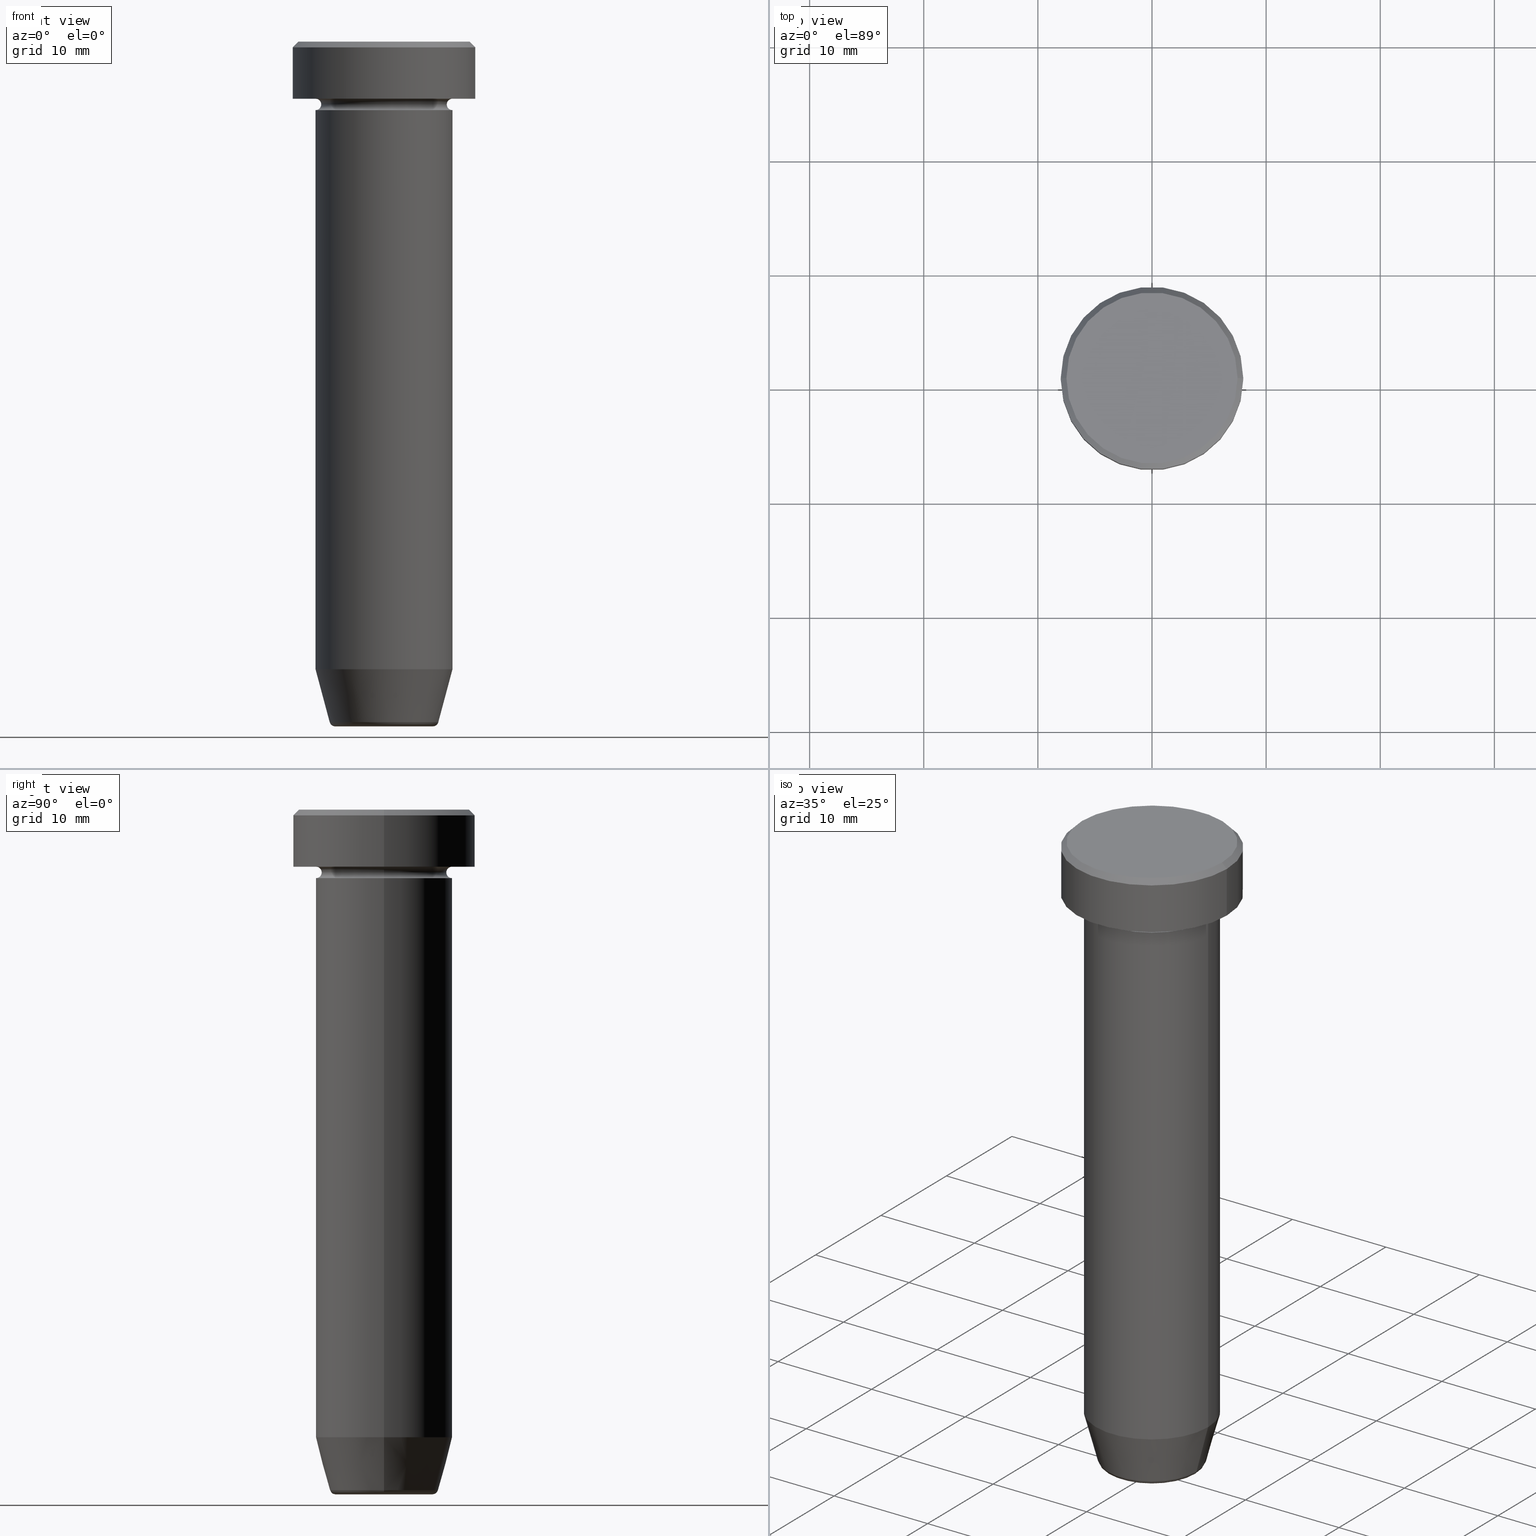
[diagram: canonical four-view strip — front | top / right | iso, engineering-drawing reading convention]
A machine part, canonical four-view strip (front | top / right | iso — engineering-drawing reading convention). The complete STEP part file that produces these views, byte-faithful:
ISO-10303-21;
HEADER;
FILE_DESCRIPTION (( 'STEP AP203' ),
    '1' );
FILE_NAME ('a646.STEP',
    '2024-01-02T23:16:25',
    ( '' ),
    ( '' ),
    'SwSTEP 2.0',
    'SolidWorks 2019',
    '' );
FILE_SCHEMA (( 'CONFIG_CONTROL_DESIGN' ));
ENDSEC;

DATA;
#1 = PRODUCT ( 'a646', 'a646', '', ( #43 ) ) ;
#2 = LOCAL_TIME ( 0, 16, 25.00000000000000000, #158 ) ;
#3 = DIRECTION ( 'NONE',  ( -0.000000000000000000, -0.000000000000000000, 1.000000000000000000 ) ) ;
#4 = CARTESIAN_POINT ( 'NONE',  ( 0.000000000000000000, 0.000000000000000000, -5.000000000000000000 ) ) ;
#5 = VECTOR ( 'NONE', #447, 1000.000000000000114 ) ;
#6 = CARTESIAN_POINT ( 'NONE',  ( 0.000000000000000000, 0.000000000000000000, -5.500000000000000000 ) ) ;
#7 = CARTESIAN_POINT ( 'NONE',  ( -6.000000000000000000, 7.347880794884119736E-16, 0.000000000000000000 ) ) ;
#8 = DIRECTION ( 'NONE',  ( -1.000000000000000000, -1.224646799147351482E-16, 0.000000000000000000 ) ) ;
#9 = ADVANCED_FACE ( 'NONE', ( #477 ), #558, .F. ) ;
#10 = ORIENTED_EDGE ( 'NONE', *, *, #518, .F. ) ;
#11 = PRODUCT_DEFINITION_FORMATION_WITH_SPECIFIED_SOURCE ( 'LIBOVOLN�', '', #1, .NOT_KNOWN. ) ;
#12 = DIRECTION ( 'NONE',  ( -1.000000000000000000, 0.000000000000000000, 0.000000000000000000 ) ) ;
#13 = AXIS2_PLACEMENT_3D ( 'NONE', #241, #244, #328 ) ;
#14 = ORIENTED_EDGE ( 'NONE', *, *, #84, .F. ) ;
#15 = ADVANCED_FACE ( 'NONE', ( #380 ), #82, .T. ) ;
#16 = CARTESIAN_POINT ( 'NONE',  ( 0.000000000000000000, 0.000000000000000000, 0.000000000000000000 ) ) ;
#17 = PERSON ( 'NEUR�EN�', 'NEUR�EN�', 'NEUR�EN�', ('NEUR�EN�'), ('NEUR�EN�'), ('NEUR�EN�') ) ;
#18 = CARTESIAN_POINT ( 'NONE',  ( 6.000000000000000000, 0.000000000000000000, -54.99999999999999289 ) ) ;
#19 = CIRCLE ( 'NONE', #415, 7.499999999999992895 ) ;
#20 = DIRECTION ( 'NONE',  ( -0.000000000000000000, -0.000000000000000000, 1.000000000000000000 ) ) ;
#21 = DIRECTION ( 'NONE',  ( 1.000000000000000000, 0.000000000000000000, 0.000000000000000000 ) ) ;
#22 = VERTEX_POINT ( 'NONE', #467 ) ;
#23 = LINE ( 'NONE', #121, #118 ) ;
#24 = DIRECTION ( 'NONE',  ( 1.000000000000000000, 0.000000000000000000, 0.000000000000000000 ) ) ;
#25 = CIRCLE ( 'NONE', #555, 4.759553456999439547 ) ;
#26 = ORIENTED_EDGE ( 'NONE', *, *, #580, .F. ) ;
#27 = FACE_OUTER_BOUND ( 'NONE', #583, .T. ) ;
#28 = CIRCLE ( 'NONE', #396, 5.500000000000000000 ) ;
#29 = DIRECTION ( 'NONE',  ( 0.000000000000000000, 0.000000000000000000, -1.000000000000000000 ) ) ;
#30 = VERTEX_POINT ( 'NONE', #48 ) ;
#31 = FACE_OUTER_BOUND ( 'NONE', #588, .T. ) ;
#32 = CIRCLE ( 'NONE', #148, 7.499999999999992895 ) ;
#33 = DESIGN_CONTEXT ( 'detailed design', #38, 'design' ) ;
#34 = ORIENTED_EDGE ( 'NONE', *, *, #40, .F. ) ;
#35 = CIRCLE ( 'NONE', #110, 0.5000000000000004441 ) ;
#36 = ORIENTED_EDGE ( 'NONE', *, *, #518, .T. ) ;
#37 = APPROVAL_DATE_TIME ( #217, #331 ) ;
#38 = APPLICATION_CONTEXT ( 'configuration controlled 3d designs of mechanical parts and assemblies' ) ;
#39 = ORIENTED_EDGE ( 'NONE', *, *, #511, .T. ) ;
#40 = EDGE_CURVE ( 'NONE', #247, #553, #297, .T. ) ;
#41 = AXIS2_PLACEMENT_3D ( 'NONE', #96, #99, #155 ) ;
#42 = EDGE_LOOP ( 'NONE', ( #363, #357, #346, #126 ) ) ;
#43 = MECHANICAL_CONTEXT ( 'NONE', #498, 'mechanical' ) ;
#44 = AXIS2_PLACEMENT_3D ( 'NONE', #60, #242, #388 ) ;
#45 = ORIENTED_EDGE ( 'NONE', *, *, #499, .F. ) ;
#46 = DIRECTION ( 'NONE',  ( -0.000000000000000000, -0.000000000000000000, 1.000000000000000000 ) ) ;
#47 = PLANE ( 'NONE',  #321 ) ;
#48 = CARTESIAN_POINT ( 'NONE',  ( -6.000000000000000000, 7.347880794884119736E-16, -15.00000000000000000 ) ) ;
#49 = CC_DESIGN_PERSON_AND_ORGANIZATION_ASSIGNMENT ( #141, #322, ( #1 ) ) ;
#50 = PLANE ( 'NONE',  #441 ) ;
#51 = AXIS2_PLACEMENT_3D ( 'NONE', #201, #255, #298 ) ;
#52 = AXIS2_PLACEMENT_3D ( 'NONE', #6, #154, #55 ) ;
#53 = EDGE_LOOP ( 'NONE', ( #223, #320 ) ) ;
#54 = DIRECTION ( 'NONE',  ( -0.000000000000000000, -0.000000000000000000, 1.000000000000000000 ) ) ;
#55 = DIRECTION ( 'NONE',  ( -1.000000000000000000, 0.000000000000000000, 0.000000000000000000 ) ) ;
#56 =( GEOMETRIC_REPRESENTATION_CONTEXT ( 3 ) GLOBAL_UNCERTAINTY_ASSIGNED_CONTEXT ( ( #213 ) ) GLOBAL_UNIT_ASSIGNED_CONTEXT ( ( #83, #136, #451 ) ) REPRESENTATION_CONTEXT ( 'NONE', 'WORKASPACE' ) );
#57 = EDGE_CURVE ( 'NONE', #598, #405, #133, .T. ) ;
#58 = FACE_OUTER_BOUND ( 'NONE', #138, .T. ) ;
#59 = AXIS2_PLACEMENT_3D ( 'NONE', #163, #586, #77 ) ;
#60 = CARTESIAN_POINT ( 'NONE',  ( 6.000000000000000000, 0.000000000000000000, -5.500000000000000000 ) ) ;
#61 = EDGE_CURVE ( 'NONE', #367, #76, #165, .T. ) ;
#62 = CARTESIAN_POINT ( 'NONE',  ( 0.000000000000000000, 6.000000000000000000, -15.00000000000000000 ) ) ;
#63 = FACE_OUTER_BOUND ( 'NONE', #569, .T. ) ;
#64 = ORIENTED_EDGE ( 'NONE', *, *, #483, .T. ) ;
#65 = COORDINATED_UNIVERSAL_TIME_OFFSET ( 1, 0, .AHEAD. ) ;
#66 = DIRECTION ( 'NONE',  ( 1.000000000000000000, 0.000000000000000000, 0.000000000000000000 ) ) ;
#67 = DIRECTION ( 'NONE',  ( -0.000000000000000000, -0.000000000000000000, 1.000000000000000000 ) ) ;
#68 = LOCAL_TIME ( 0, 16, 25.00000000000000000, #65 ) ;
#69 = DIRECTION ( 'NONE',  ( -0.000000000000000000, -0.000000000000000000, 1.000000000000000000 ) ) ;
#70 = AXIS2_PLACEMENT_3D ( 'NONE', #487, #206, #540 ) ;
#71 = CARTESIAN_POINT ( 'NONE',  ( 0.000000000000000000, 0.000000000000000000, 0.000000000000000000 ) ) ;
#72 = VERTEX_POINT ( 'NONE', #417 ) ;
#73 = AXIS2_PLACEMENT_3D ( 'NONE', #439, #535, #443 ) ;
#74 = DATE_TIME_ROLE ( 'classification_date' ) ;
#75 = CARTESIAN_POINT ( 'NONE',  ( 8.000000000000000000, 0.000000000000000000, -5.000000000000000000 ) ) ;
#76 = VERTEX_POINT ( 'NONE', #564 ) ;
#77 = DIRECTION ( 'NONE',  ( 1.000000000000000000, 0.000000000000000000, 0.000000000000000000 ) ) ;
#78 = ORIENTED_EDGE ( 'NONE', *, *, #348, .T. ) ;
#79 = AXIS2_PLACEMENT_3D ( 'NONE', #334, #101, #325 ) ;
#80 = CARTESIAN_POINT ( 'NONE',  ( 4.276590543854903004, 0.000000000000000000, -59.50000000000000000 ) ) ;
#81 = ORIENTED_EDGE ( 'NONE', *, *, #338, .T. ) ;
#82 = CONICAL_SURFACE ( 'NONE', #173, 7.499999999999992895, 0.7853981633974482790 ) ;
#83 =( LENGTH_UNIT ( ) NAMED_UNIT ( * ) SI_UNIT ( .MILLI., .METRE. ) );
#84 = EDGE_CURVE ( 'NONE', #508, #405, #142, .T. ) ;
#85 = ORIENTED_EDGE ( 'NONE', *, *, #362, .F. ) ;
#86 = CARTESIAN_POINT ( 'NONE',  ( -4.660254037844383745, 5.707165190659652868E-16, -60.00000000000000000 ) ) ;
#87 = APPROVAL_PERSON_ORGANIZATION ( #107, #222, #212 ) ;
#88 = ORIENTED_EDGE ( 'NONE', *, *, #230, .F. ) ;
#89 = AXIS2_PLACEMENT_3D ( 'NONE', #16, #515, #146 ) ;
#90 = CARTESIAN_POINT ( 'NONE',  ( 5.500000000000000000, 0.000000000000000000, -5.500000000000000000 ) ) ;
#91 = ORIENTED_EDGE ( 'NONE', *, *, #57, .F. ) ;
#92 = EDGE_CURVE ( 'NONE', #553, #367, #35, .T. ) ;
#93 = PLANE ( 'NONE',  #504 ) ;
#94 = CARTESIAN_POINT ( 'NONE',  ( 0.000000000000000000, 0.000000000000000000, -60.00000000000000000 ) ) ;
#95 = VERTEX_POINT ( 'NONE', #323 ) ;
#96 = CARTESIAN_POINT ( 'NONE',  ( 0.000000000000000000, 0.000000000000000000, 0.000000000000000000 ) ) ;
#97 = CIRCLE ( 'NONE', #403, 4.276590543854903004 ) ;
#98 = FACE_OUTER_BOUND ( 'NONE', #542, .T. ) ;
#99 = DIRECTION ( 'NONE',  ( -0.000000000000000000, -0.000000000000000000, 1.000000000000000000 ) ) ;
#100 = DIRECTION ( 'NONE',  ( -0.000000000000000000, -0.000000000000000000, 1.000000000000000000 ) ) ;
#101 = DIRECTION ( 'NONE',  ( -0.000000000000000000, -1.000000000000000000, -0.000000000000000000 ) ) ;
#102 = PRODUCT_RELATED_PRODUCT_CATEGORY ( 'detail', '', ( #1 ) ) ;
#103 = VERTEX_POINT ( 'NONE', #429 ) ;
#104 = DIRECTION ( 'NONE',  ( 1.000000000000000000, 0.000000000000000000, 0.000000000000000000 ) ) ;
#105 = CIRCLE ( 'NONE', #70, 8.000000000000000000 ) ;
#106 = DIRECTION ( 'NONE',  ( 0.7071067811865474617, 8.659560562354932858E-17, -0.7071067811865474617 ) ) ;
#107 = PERSON_AND_ORGANIZATION ( #17, #562 ) ;
#108 = DIRECTION ( 'NONE',  ( 1.000000000000000000, 0.000000000000000000, 0.000000000000000000 ) ) ;
#109 = FACE_OUTER_BOUND ( 'NONE', #42, .T. ) ;
#110 = AXIS2_PLACEMENT_3D ( 'NONE', #556, #184, #8 ) ;
#111 = ORIENTED_EDGE ( 'NONE', *, *, #366, .T. ) ;
#112 = DIRECTION ( 'NONE',  ( -1.000000000000000000, 0.000000000000000000, 0.000000000000000000 ) ) ;
#113 = CARTESIAN_POINT ( 'NONE',  ( 0.000000000000000000, 0.000000000000000000, 0.000000000000000000 ) ) ;
#114 = ORIENTED_EDGE ( 'NONE', *, *, #149, .T. ) ;
#115 = LOCAL_TIME ( 0, 16, 25.00000000000000000, #454 ) ;
#116 = CC_DESIGN_PERSON_AND_ORGANIZATION_ASSIGNMENT ( #248, #205, ( #11 ) ) ;
#117 = CARTESIAN_POINT ( 'NONE',  ( 0.000000000000000000, 0.000000000000000000, -15.00000000000000000 ) ) ;
#118 = VECTOR ( 'NONE', #202, 1000.000000000000000 ) ;
#119 = VERTEX_POINT ( 'NONE', #333 ) ;
#120 = DATE_AND_TIME ( #444, #68 ) ;
#121 = CARTESIAN_POINT ( 'NONE',  ( 8.000000000000000000, 0.000000000000000000, 0.000000000000000000 ) ) ;
#122 = ADVANCED_FACE ( 'NONE', ( #145 ), #93, .F. ) ;
#123 = ORIENTED_EDGE ( 'NONE', *, *, #545, .T. ) ;
#124 = FACE_OUTER_BOUND ( 'NONE', #266, .T. ) ;
#125 = ADVANCED_FACE ( 'NONE', ( #464 ), #267, .T. ) ;
#126 = ORIENTED_EDGE ( 'NONE', *, *, #197, .F. ) ;
#127 = CARTESIAN_POINT ( 'NONE',  ( -4.276590543854903004, 5.237312920795746049E-16, -59.50000000000000000 ) ) ;
#128 = EDGE_LOOP ( 'NONE', ( #408, #305, #45, #550 ) ) ;
#129 = AXIS2_PLACEMENT_3D ( 'NONE', #565, #563, #104 ) ;
#130 = ADVANCED_FACE ( 'NONE', ( #98 ), #284, .T. ) ;
#131 = DIRECTION ( 'NONE',  ( -1.000000000000000000, 1.224646799147353454E-16, 0.000000000000000000 ) ) ;
#132 = ORIENTED_EDGE ( 'NONE', *, *, #348, .F. ) ;
#133 = CIRCLE ( 'NONE', #324, 8.000000000000000000 ) ;
#134 = APPROVAL_STATUS ( 'not_yet_approved' ) ;
#135 = EDGE_LOOP ( 'NONE', ( #536, #385 ) ) ;
#136 =( NAMED_UNIT ( * ) PLANE_ANGLE_UNIT ( ) SI_UNIT ( $, .RADIAN. ) );
#137 = CC_DESIGN_APPROVAL ( #222, ( #11 ) ) ;
#138 = EDGE_LOOP ( 'NONE', ( #157, #544 ) ) ;
#139 = AXIS2_PLACEMENT_3D ( 'NONE', #345, #67, #533 ) ;
#140 = AXIS2_PLACEMENT_3D ( 'NONE', #543, #300, #249 ) ;
#141 = PERSON_AND_ORGANIZATION ( #17, #562 ) ;
#142 = LINE ( 'NONE', #375, #423 ) ;
#143 = EDGE_CURVE ( 'NONE', #553, #247, #28, .T. ) ;
#144 = FACE_OUTER_BOUND ( 'NONE', #559, .T. ) ;
#145 = FACE_OUTER_BOUND ( 'NONE', #53, .T. ) ;
#146 = DIRECTION ( 'NONE',  ( 1.000000000000000000, 0.000000000000000000, 0.000000000000000000 ) ) ;
#147 = DIRECTION ( 'NONE',  ( 1.000000000000000000, 0.000000000000000000, 0.000000000000000000 ) ) ;
#148 = AXIS2_PLACEMENT_3D ( 'NONE', #438, #258, #167 ) ;
#149 = EDGE_CURVE ( 'NONE', #30, #218, #488, .T. ) ;
#150 = DIRECTION ( 'NONE',  ( 1.000000000000000000, 0.000000000000000000, 0.000000000000000000 ) ) ;
#151 = DIRECTION ( 'NONE',  ( -1.000000000000000000, 0.000000000000000000, 0.000000000000000000 ) ) ;
#152 = CARTESIAN_POINT ( 'NONE',  ( 0.000000000000000000, 0.000000000000000000, 0.000000000000000000 ) ) ;
#153 = CIRCLE ( 'NONE', #245, 6.000000000000000000 ) ;
#154 = DIRECTION ( 'NONE',  ( 0.000000000000000000, 0.000000000000000000, -1.000000000000000000 ) ) ;
#155 = DIRECTION ( 'NONE',  ( 1.000000000000000000, 0.000000000000000000, 0.000000000000000000 ) ) ;
#156 = DIRECTION ( 'NONE',  ( -0.000000000000000000, -0.000000000000000000, 1.000000000000000000 ) ) ;
#157 = ORIENTED_EDGE ( 'NONE', *, *, #366, .F. ) ;
#158 = COORDINATED_UNIVERSAL_TIME_OFFSET ( 1, 0, .AHEAD. ) ;
#159 = CARTESIAN_POINT ( 'NONE',  ( 0.000000000000000000, 0.000000000000000000, -54.99999999999999289 ) ) ;
#160 = CIRCLE ( 'NONE', #343, 0.5000000000000004441 ) ;
#161 = CYLINDRICAL_SURFACE ( 'NONE', #139, 8.000000000000000000 ) ;
#162 = VECTOR ( 'NONE', #414, 1000.000000000000114 ) ;
#163 = CARTESIAN_POINT ( 'NONE',  ( 0.000000000000000000, 0.000000000000000000, -59.50000000000000000 ) ) ;
#164 = CARTESIAN_POINT ( 'NONE',  ( 0.000000000000000000, 0.000000000000000000, -15.00000000000000000 ) ) ;
#165 = CIRCLE ( 'NONE', #207, 6.000000000000000000 ) ;
#166 = EDGE_LOOP ( 'NONE', ( #172, #210 ) ) ;
#167 = DIRECTION ( 'NONE',  ( 1.000000000000000000, 0.000000000000000000, 0.000000000000000000 ) ) ;
#168 = DIRECTION ( 'NONE',  ( -0.000000000000000000, -0.000000000000000000, 1.000000000000000000 ) ) ;
#169 = CIRCLE ( 'NONE', #411, 8.000000000000000000 ) ;
#170 = APPROVAL_ROLE ( '' ) ;
#171 = CARTESIAN_POINT ( 'NONE',  ( 0.000000000000000000, 0.000000000000000000, -60.00000000000000000 ) ) ;
#172 = ORIENTED_EDGE ( 'NONE', *, *, #545, .F. ) ;
#173 = AXIS2_PLACEMENT_3D ( 'NONE', #188, #336, #151 ) ;
#174 = DIRECTION ( 'NONE',  ( 0.000000000000000000, -1.000000000000000000, 0.000000000000000000 ) ) ;
#175 = ORIENTED_EDGE ( 'NONE', *, *, #469, .T. ) ;
#176 = EDGE_CURVE ( 'NONE', #264, #72, #512, .T. ) ;
#177 = ORIENTED_EDGE ( 'NONE', *, *, #316, .T. ) ;
#178 = CIRCLE ( 'NONE', #520, 6.000000000000000000 ) ;
#179 = ORIENTED_EDGE ( 'NONE', *, *, #463, .F. ) ;
#180 = CIRCLE ( 'NONE', #73, 6.000000000000000000 ) ;
#181 = DIRECTION ( 'NONE',  ( 1.000000000000000000, 0.000000000000000000, 0.000000000000000000 ) ) ;
#182 = VERTEX_POINT ( 'NONE', #198 ) ;
#183 = LINE ( 'NONE', #86, #573 ) ;
#184 = DIRECTION ( 'NONE',  ( -1.224646799147353207E-16, 1.000000000000000000, 0.000000000000000000 ) ) ;
#185 = AXIS2_PLACEMENT_3D ( 'NONE', #236, #337, #428 ) ;
#186 = CONICAL_SURFACE ( 'NONE', #382, 4.660254037844383745, 0.2617993877991497409 ) ;
#187 = LINE ( 'NONE', #7, #509 ) ;
#188 = CARTESIAN_POINT ( 'NONE',  ( 0.000000000000000000, 0.000000000000000000, 0.000000000000000000 ) ) ;
#189 = CARTESIAN_POINT ( 'NONE',  ( 6.000000000000000000, 7.347880794884119736E-16, -4.999999999999999112 ) ) ;
#190 = EDGE_CURVE ( 'NONE', #330, #218, #445, .T. ) ;
#191 = DIRECTION ( 'NONE',  ( -1.000000000000000000, 0.000000000000000000, 0.000000000000000000 ) ) ;
#192 = DIRECTION ( 'NONE',  ( -0.000000000000000000, -0.000000000000000000, 1.000000000000000000 ) ) ;
#193 = VECTOR ( 'NONE', #592, 1000.000000000000000 ) ;
#194 = DIRECTION ( 'NONE',  ( 0.000000000000000000, 0.000000000000000000, -1.000000000000000000 ) ) ;
#195 = EDGE_LOOP ( 'NONE', ( #78, #549, #259, #413 ) ) ;
#196 = DIRECTION ( 'NONE',  ( -1.000000000000000000, 0.000000000000000000, -0.000000000000000000 ) ) ;
#197 = EDGE_CURVE ( 'NONE', #218, #330, #180, .T. ) ;
#198 = CARTESIAN_POINT ( 'NONE',  ( 6.000000000000000000, 0.000000000000000000, -15.00000000000000000 ) ) ;
#199 = APPROVAL_DATE_TIME ( #585, #222 ) ;
#200 = FACE_OUTER_BOUND ( 'NONE', #482, .T. ) ;
#201 = CARTESIAN_POINT ( 'NONE',  ( 0.000000000000000000, 0.000000000000000000, -6.000000000000000000 ) ) ;
#202 = DIRECTION ( 'NONE',  ( -0.000000000000000000, -0.000000000000000000, 1.000000000000000000 ) ) ;
#203 = CIRCLE ( 'NONE', #263, 8.000000000000000000 ) ;
#204 = CARTESIAN_POINT ( 'NONE',  ( -6.000000000000000000, 7.347880794884119736E-16, -6.000000000000000000 ) ) ;
#205 = PERSON_AND_ORGANIZATION_ROLE ( 'creator' ) ;
#206 = DIRECTION ( 'NONE',  ( 0.000000000000000000, 0.000000000000000000, -1.000000000000000000 ) ) ;
#207 = AXIS2_PLACEMENT_3D ( 'NONE', #229, #192, #371 ) ;
#208 = ORIENTED_EDGE ( 'NONE', *, *, #234, .F. ) ;
#209 = DIRECTION ( 'NONE',  ( 0.000000000000000000, 0.000000000000000000, -1.000000000000000000 ) ) ;
#210 = ORIENTED_EDGE ( 'NONE', *, *, #335, .F. ) ;
#211 = APPROVAL ( #347, 'NEUR�EN�' ) ;
#212 = APPROVAL_ROLE ( '' ) ;
#213 = UNCERTAINTY_MEASURE_WITH_UNIT (LENGTH_MEASURE( 1.000000000000000082E-05 ), #83, 'distance_accuracy_value', 'NONE');
#214 = CARTESIAN_POINT ( 'NONE',  ( 0.000000000000000000, 0.000000000000000000, 0.000000000000000000 ) ) ;
#215 = AXIS2_PLACEMENT_3D ( 'NONE', #356, #436, #66 ) ;
#216 = ORIENTED_EDGE ( 'NONE', *, *, #228, .T. ) ;
#217 = DATE_AND_TIME ( #589, #115 ) ;
#218 = VERTEX_POINT ( 'NONE', #204 ) ;
#219 = DIRECTION ( 'NONE',  ( -0.2588190451025210170, 3.169619151431768639E-17, 0.9659258262890680902 ) ) ;
#220 = ORIENTED_EDGE ( 'NONE', *, *, #362, .T. ) ;
#221 = PERSON_AND_ORGANIZATION ( #17, #562 ) ;
#222 = APPROVAL ( #531, 'NEUR�EN�' ) ;
#223 = ORIENTED_EDGE ( 'NONE', *, *, #404, .T. ) ;
#224 = AXIS2_PLACEMENT_3D ( 'NONE', #214, #402, #597 ) ;
#225 = CARTESIAN_POINT ( 'NONE',  ( 4.660254037844383745, 0.000000000000000000, -60.00000000000000000 ) ) ;
#226 = VERTEX_POINT ( 'NONE', #18 ) ;
#227 = CIRCLE ( 'NONE', #44, 0.5000000000000004441 ) ;
#228 = EDGE_CURVE ( 'NONE', #119, #22, #19, .T. ) ;
#229 = CARTESIAN_POINT ( 'NONE',  ( 0.000000000000000000, 0.000000000000000000, -5.000000000000000000 ) ) ;
#230 = EDGE_CURVE ( 'NONE', #76, #367, #153, .T. ) ;
#231 = DIRECTION ( 'NONE',  ( 1.000000000000000000, 0.000000000000000000, 0.000000000000000000 ) ) ;
#232 = AXIS2_PLACEMENT_3D ( 'NONE', #537, #349, #303 ) ;
#233 = DIRECTION ( 'NONE',  ( -1.000000000000000000, 0.000000000000000000, 0.000000000000000000 ) ) ;
#234 = EDGE_CURVE ( 'NONE', #553, #330, #227, .T. ) ;
#235 = ORIENTED_EDGE ( 'NONE', *, *, #511, .F. ) ;
#236 = CARTESIAN_POINT ( 'NONE',  ( 0.000000000000000000, 8.000000000000000000, -5.000000000000000000 ) ) ;
#237 = DIRECTION ( 'NONE',  ( 1.000000000000000000, 0.000000000000000000, 0.000000000000000000 ) ) ;
#238 = PLANE ( 'NONE',  #185 ) ;
#239 = DIRECTION ( 'NONE',  ( 0.000000000000000000, -0.000000000000000000, 1.000000000000000000 ) ) ;
#240 = TOROIDAL_SURFACE ( 'NONE', #13, 6.000000000000000000, 0.5000000000000000000 ) ;
#241 = CARTESIAN_POINT ( 'NONE',  ( 0.000000000000000000, 0.000000000000000000, -5.500000000000000000 ) ) ;
#242 = DIRECTION ( 'NONE',  ( 0.000000000000000000, -1.000000000000000000, 0.000000000000000000 ) ) ;
#243 = EDGE_CURVE ( 'NONE', #119, #598, #340, .T. ) ;
#244 = DIRECTION ( 'NONE',  ( -0.000000000000000000, -0.000000000000000000, 1.000000000000000000 ) ) ;
#245 = AXIS2_PLACEMENT_3D ( 'NONE', #395, #485, #391 ) ;
#246 = CARTESIAN_POINT ( 'NONE',  ( 0.000000000000000000, 0.000000000000000000, -5.500000000000000000 ) ) ;
#247 = VERTEX_POINT ( 'NONE', #572 ) ;
#248 = PERSON_AND_ORGANIZATION ( #17, #562 ) ;
#249 = DIRECTION ( 'NONE',  ( 1.000000000000000000, 0.000000000000000000, 0.000000000000000000 ) ) ;
#250 = CYLINDRICAL_SURFACE ( 'NONE', #41, 6.000000000000000000 ) ;
#251 = ORIENTED_EDGE ( 'NONE', *, *, #190, .T. ) ;
#252 = SECURITY_CLASSIFICATION_LEVEL ( 'unclassified' ) ;
#253 = DIRECTION ( 'NONE',  ( -0.000000000000000000, -0.000000000000000000, 1.000000000000000000 ) ) ;
#254 = TOROIDAL_SURFACE ( 'NONE', #360, 6.000000000000000000, 0.5000000000000000000 ) ;
#255 = DIRECTION ( 'NONE',  ( -0.000000000000000000, -0.000000000000000000, 1.000000000000000000 ) ) ;
#256 = CARTESIAN_POINT ( 'NONE',  ( 0.000000000000000000, 0.000000000000000000, -5.500000000000000000 ) ) ;
#257 = AXIS2_PLACEMENT_3D ( 'NONE', #568, #577, #21 ) ;
#258 = DIRECTION ( 'NONE',  ( -0.000000000000000000, -0.000000000000000000, 1.000000000000000000 ) ) ;
#259 = ORIENTED_EDGE ( 'NONE', *, *, #469, .F. ) ;
#260 = ADVANCED_BREP_SHAPE_REPRESENTATION ( 'a646', ( #474, #268, #517 ), #56 ) ;
#261 = SECURITY_CLASSIFICATION ( '', '', #252 ) ;
#262 = APPROVAL_ROLE ( '' ) ;
#263 = AXIS2_PLACEMENT_3D ( 'NONE', #4, #54, #373 ) ;
#264 = VERTEX_POINT ( 'NONE', #481 ) ;
#265 = DIRECTION ( 'NONE',  ( 1.000000000000000000, 0.000000000000000000, 0.000000000000000000 ) ) ;
#266 = EDGE_LOOP ( 'NONE', ( #34, #416, #286, #208 ) ) ;
#267 = TOROIDAL_SURFACE ( 'NONE', #452, 4.276590543854903004, 0.5000000000000000000 ) ;
#268 = MANIFOLD_SOLID_BREP ( 'Zaoblit4', #493 ) ;
#269 = ADVANCED_FACE ( 'NONE', ( #63 ), #161, .T. ) ;
#270 = ORIENTED_EDGE ( 'NONE', *, *, #580, .T. ) ;
#271 = LINE ( 'NONE', #457, #193 ) ;
#272 = ORIENTED_EDGE ( 'NONE', *, *, #190, .F. ) ;
#273 = CONICAL_SURFACE ( 'NONE', #215, 4.660254037844383745, 0.2617993877991497409 ) ;
#274 = ADVANCED_FACE ( 'NONE', ( #109 ), #250, .T. ) ;
#275 = ORIENTED_EDGE ( 'NONE', *, *, #61, .T. ) ;
#276 = VECTOR ( 'NONE', #106, 1000.000000000000114 ) ;
#277 = EDGE_LOOP ( 'NONE', ( #578, #341, #505, #547 ) ) ;
#278 = PRODUCT_DEFINITION_SHAPE ( 'NONE', 'NONE',  #407 ) ;
#279 = AXIS2_PLACEMENT_3D ( 'NONE', #80, #174, #461 ) ;
#280 = DIRECTION ( 'NONE',  ( 1.224646799147353207E-16, 1.000000000000000000, 0.000000000000000000 ) ) ;
#281 = EDGE_LOOP ( 'NONE', ( #450, #514, #88, #326 ) ) ;
#282 = AXIS2_PLACEMENT_3D ( 'NONE', #152, #525, #12 ) ;
#283 = CARTESIAN_POINT ( 'NONE',  ( -6.000000000000000000, 7.347880794884119736E-16, -5.500000000000000000 ) ) ;
#284 = CYLINDRICAL_SURFACE ( 'NONE', #257, 8.000000000000000000 ) ;
#285 = CARTESIAN_POINT ( 'NONE',  ( -6.000000000000000000, 7.347880794884119736E-16, -54.99999999999999289 ) ) ;
#286 = ORIENTED_EDGE ( 'NONE', *, *, #197, .T. ) ;
#287 = PLANE ( 'NONE',  #89 ) ;
#288 = DIRECTION ( 'NONE',  ( 0.000000000000000000, 0.000000000000000000, -1.000000000000000000 ) ) ;
#289 = ADVANCED_FACE ( 'NONE', ( #466 ), #50, .F. ) ;
#290 = AXIS2_PLACEMENT_3D ( 'NONE', #117, #494, #442 ) ;
#291 = CARTESIAN_POINT ( 'NONE',  ( 6.000000000000000000, 0.000000000000000000, -6.000000000000000000 ) ) ;
#292 = DIRECTION ( 'NONE',  ( -0.000000000000000000, -0.000000000000000000, 1.000000000000000000 ) ) ;
#293 = CC_DESIGN_DATE_AND_TIME_ASSIGNMENT ( #327, #376, ( #407 ) ) ;
#294 = ORIENTED_EDGE ( 'NONE', *, *, #84, .T. ) ;
#295 = DATE_AND_TIME ( #342, #2 ) ;
#296 = CYLINDRICAL_SURFACE ( 'NONE', #368, 6.000000000000000000 ) ;
#297 = CIRCLE ( 'NONE', #372, 5.500000000000000000 ) ;
#298 = DIRECTION ( 'NONE',  ( 1.000000000000000000, 0.000000000000000000, 0.000000000000000000 ) ) ;
#299 = ORIENTED_EDGE ( 'NONE', *, *, #234, .T. ) ;
#300 = DIRECTION ( 'NONE',  ( -0.000000000000000000, -0.000000000000000000, 1.000000000000000000 ) ) ;
#301 = DIRECTION ( 'NONE',  ( 1.000000000000000000, 0.000000000000000000, 0.000000000000000000 ) ) ;
#302 = APPROVAL_DATE_TIME ( #120, #211 ) ;
#303 = DIRECTION ( 'NONE',  ( 1.000000000000000000, 0.000000000000000000, 0.000000000000000000 ) ) ;
#304 = AXIS2_PLACEMENT_3D ( 'NONE', #394, #253, #400 ) ;
#305 = ORIENTED_EDGE ( 'NONE', *, *, #243, .T. ) ;
#306 = CARTESIAN_POINT ( 'NONE',  ( -7.499999999999992895, 0.000000000000000000, 0.000000000000000000 ) ) ;
#307 = EDGE_CURVE ( 'NONE', #247, #218, #160, .T. ) ;
#308 = ORIENTED_EDGE ( 'NONE', *, *, #404, .F. ) ;
#309 = PERSON_AND_ORGANIZATION ( #17, #562 ) ;
#310 = AXIS2_PLACEMENT_3D ( 'NONE', #364, #448, #554 ) ;
#311 = CIRCLE ( 'NONE', #279, 0.5000000000000004441 ) ;
#312 = ORIENTED_EDGE ( 'NONE', *, *, #176, .F. ) ;
#313 = ORIENTED_EDGE ( 'NONE', *, *, #463, .T. ) ;
#314 = PERSON_AND_ORGANIZATION_ROLE ( 'creator' ) ;
#315 = ADVANCED_FACE ( 'NONE', ( #480 ), #47, .T. ) ;
#316 = EDGE_CURVE ( 'NONE', #455, #95, #449, .T. ) ;
#317 = VERTEX_POINT ( 'NONE', #285 ) ;
#318 = CARTESIAN_POINT ( 'NONE',  ( 0.000000000000000000, 0.000000000000000000, -60.00000000000000000 ) ) ;
#319 = CC_DESIGN_PERSON_AND_ORGANIZATION_ASSIGNMENT ( #221, #314, ( #407 ) ) ;
#320 = ORIENTED_EDGE ( 'NONE', *, *, #427, .T. ) ;
#321 = AXIS2_PLACEMENT_3D ( 'NONE', #62, #332, #196 ) ;
#322 = PERSON_AND_ORGANIZATION_ROLE ( 'design_owner' ) ;
#323 = CARTESIAN_POINT ( 'NONE',  ( 4.759553456999439547, 0.000000000000000000, -59.62940952255126348 ) ) ;
#324 = AXIS2_PLACEMENT_3D ( 'NONE', #425, #288, #231 ) ;
#325 = DIRECTION ( 'NONE',  ( 0.000000000000000000, 0.000000000000000000, -1.000000000000000000 ) ) ;
#326 = ORIENTED_EDGE ( 'NONE', *, *, #386, .F. ) ;
#327 = DATE_AND_TIME ( #465, #475 ) ;
#328 = DIRECTION ( 'NONE',  ( 1.000000000000000000, 0.000000000000000000, 0.000000000000000000 ) ) ;
#329 = APPROVAL_PERSON_ORGANIZATION ( #534, #211, #170 ) ;
#330 = VERTEX_POINT ( 'NONE', #291 ) ;
#331 = APPROVAL ( #134, 'NEUR�EN�' ) ;
#332 = DIRECTION ( 'NONE',  ( 0.000000000000000000, 0.000000000000000000, -1.000000000000000000 ) ) ;
#333 = CARTESIAN_POINT ( 'NONE',  ( 7.499999999999992895, 9.491012693391981871E-16, 0.000000000000000000 ) ) ;
#334 = CARTESIAN_POINT ( 'NONE',  ( -6.000000000000000000, 0.000000000000000000, -5.500000000000000000 ) ) ;
#335 = EDGE_CURVE ( 'NONE', #30, #182, #420, .T. ) ;
#336 = DIRECTION ( 'NONE',  ( 0.000000000000000000, 0.000000000000000000, -1.000000000000000000 ) ) ;
#337 = DIRECTION ( 'NONE',  ( 0.000000000000000000, 0.000000000000000000, -1.000000000000000000 ) ) ;
#338 = EDGE_CURVE ( 'NONE', #508, #491, #169, .T. ) ;
#339 = LOCAL_TIME ( 0, 16, 25.00000000000000000, #440 ) ;
#340 = LINE ( 'NONE', #529, #276 ) ;
#341 = ORIENTED_EDGE ( 'NONE', *, *, #143, .T. ) ;
#342 = CALENDAR_DATE ( 2024, 3, 1 ) ;
#343 = AXIS2_PLACEMENT_3D ( 'NONE', #283, #280, #523 ) ;
#344 = DIRECTION ( 'NONE',  ( 1.000000000000000000, 0.000000000000000000, 0.000000000000000000 ) ) ;
#345 = CARTESIAN_POINT ( 'NONE',  ( 0.000000000000000000, 0.000000000000000000, 0.000000000000000000 ) ) ;
#346 = ORIENTED_EDGE ( 'NONE', *, *, #552, .T. ) ;
#347 = APPROVAL_STATUS ( 'not_yet_approved' ) ;
#348 = EDGE_CURVE ( 'NONE', #95, #455, #25, .T. ) ;
#349 = DIRECTION ( 'NONE',  ( -0.000000000000000000, -0.000000000000000000, 1.000000000000000000 ) ) ;
#350 = CARTESIAN_POINT ( 'NONE',  ( -6.000000000000000000, 7.347880794884119736E-16, 0.000000000000000000 ) ) ;
#351 = DIRECTION ( 'NONE',  ( -0.000000000000000000, -0.000000000000000000, 1.000000000000000000 ) ) ;
#352 = CC_DESIGN_DATE_AND_TIME_ASSIGNMENT ( #295, #74, ( #261 ) ) ;
#353 = FACE_OUTER_BOUND ( 'NONE', #502, .T. ) ;
#354 = CONICAL_SURFACE ( 'NONE', #282, 7.499999999999992895, 0.7853981633974482790 ) ;
#355 = AXIS2_PLACEMENT_3D ( 'NONE', #127, #551, #131 ) ;
#356 = CARTESIAN_POINT ( 'NONE',  ( 0.000000000000000000, 0.000000000000000000, -60.00000000000000000 ) ) ;
#357 = ORIENTED_EDGE ( 'NONE', *, *, #335, .T. ) ;
#358 = CARTESIAN_POINT ( 'NONE',  ( 0.000000000000000000, 0.000000000000000000, 0.000000000000000000 ) ) ;
#359 = ORIENTED_EDGE ( 'NONE', *, *, #590, .F. ) ;
#360 = AXIS2_PLACEMENT_3D ( 'NONE', #256, #29, #112 ) ;
#361 = ORIENTED_EDGE ( 'NONE', *, *, #316, .F. ) ;
#362 = EDGE_CURVE ( 'NONE', #317, #72, #187, .T. ) ;
#363 = ORIENTED_EDGE ( 'NONE', *, *, #149, .F. ) ;
#364 = CARTESIAN_POINT ( 'NONE',  ( 0.000000000000000000, 0.000000000000000000, -15.00000000000000000 ) ) ;
#365 = EDGE_LOOP ( 'NONE', ( #64, #216 ) ) ;
#366 = EDGE_CURVE ( 'NONE', #491, #508, #203, .T. ) ;
#367 = VERTEX_POINT ( 'NONE', #189 ) ;
#368 = AXIS2_PLACEMENT_3D ( 'NONE', #71, #351, #484 ) ;
#369 = CARTESIAN_POINT ( 'NONE',  ( 0.000000000000000000, -4.336808689942017736E-15, -15.00000000000000000 ) ) ;
#370 = ADVANCED_FACE ( 'NONE', ( #144 ), #240, .F. ) ;
#371 = DIRECTION ( 'NONE',  ( -1.000000000000000000, 0.000000000000000000, 0.000000000000000000 ) ) ;
#372 = AXIS2_PLACEMENT_3D ( 'NONE', #422, #46, #526 ) ;
#373 = DIRECTION ( 'NONE',  ( 1.000000000000000000, 0.000000000000000000, 0.000000000000000000 ) ) ;
#374 = ADVANCED_FACE ( 'NONE', ( #378, #58 ), #238, .T. ) ;
#375 = CARTESIAN_POINT ( 'NONE',  ( -8.000000000000000000, 9.797174393178825657E-16, 0.000000000000000000 ) ) ;
#376 = DATE_TIME_ROLE ( 'creation_date' ) ;
#377 = APPROVAL_PERSON_ORGANIZATION ( #309, #331, #262 ) ;
#378 = FACE_BOUND ( 'NONE', #453, .T. ) ;
#379 = CC_DESIGN_APPROVAL ( #211, ( #261 ) ) ;
#380 = FACE_OUTER_BOUND ( 'NONE', #128, .T. ) ;
#381 = CIRCLE ( 'NONE', #431, 4.276590543854903004 ) ;
#382 = AXIS2_PLACEMENT_3D ( 'NONE', #318, #503, #181 ) ;
#383 = ADVANCED_FACE ( 'NONE', ( #424 ), #354, .T. ) ;
#384 = CARTESIAN_POINT ( 'NONE',  ( 0.000000000000000000, 0.000000000000000000, -59.62940952255126348 ) ) ;
#385 = ORIENTED_EDGE ( 'NONE', *, *, #479, .T. ) ;
#386 = EDGE_CURVE ( 'NONE', #247, #76, #594, .T. ) ;
#387 = DIRECTION ( 'NONE',  ( -0.000000000000000000, -0.000000000000000000, 1.000000000000000000 ) ) ;
#388 = DIRECTION ( 'NONE',  ( 0.000000000000000000, 0.000000000000000000, -1.000000000000000000 ) ) ;
#389 = PERSON_AND_ORGANIZATION ( #17, #562 ) ;
#390 = FACE_OUTER_BOUND ( 'NONE', #195, .T. ) ;
#391 = DIRECTION ( 'NONE',  ( -1.000000000000000000, 0.000000000000000000, 0.000000000000000000 ) ) ;
#392 = ADVANCED_FACE ( 'NONE', ( #566 ), #287, .T. ) ;
#393 = CIRCLE ( 'NONE', #355, 0.4999999999999995559 ) ;
#394 = CARTESIAN_POINT ( 'NONE',  ( 0.000000000000000000, 0.000000000000000000, -5.500000000000000000 ) ) ;
#395 = CARTESIAN_POINT ( 'NONE',  ( 0.000000000000000000, 0.000000000000000000, -5.000000000000000000 ) ) ;
#396 = AXIS2_PLACEMENT_3D ( 'NONE', #246, #292, #301 ) ;
#397 = CARTESIAN_POINT ( 'NONE',  ( 4.276590543854903004, 0.000000000000000000, -60.00000000000000000 ) ) ;
#398 = AXIS2_PLACEMENT_3D ( 'NONE', #164, #437, #24 ) ;
#399 = PERSON_AND_ORGANIZATION_ROLE ( 'design_supplier' ) ;
#400 = DIRECTION ( 'NONE',  ( 1.000000000000000000, 0.000000000000000000, 0.000000000000000000 ) ) ;
#401 = EDGE_LOOP ( 'NONE', ( #516, #574, #460, #91 ) ) ;
#402 = DIRECTION ( 'NONE',  ( -0.000000000000000000, -0.000000000000000000, 1.000000000000000000 ) ) ;
#403 = AXIS2_PLACEMENT_3D ( 'NONE', #171, #209, #344 ) ;
#404 = EDGE_CURVE ( 'NONE', #524, #103, #381, .T. ) ;
#405 = VERTEX_POINT ( 'NONE', #476 ) ;
#406 = CARTESIAN_POINT ( 'NONE',  ( 8.000000000000000000, 0.000000000000000000, -0.5000000000000073275 ) ) ;
#407 = PRODUCT_DEFINITION ( 'NEZN�M�', '', #11, #33 ) ;
#408 = ORIENTED_EDGE ( 'NONE', *, *, #228, .F. ) ;
#409 = ORIENTED_EDGE ( 'NONE', *, *, #552, .F. ) ;
#410 = FACE_OUTER_BOUND ( 'NONE', #470, .T. ) ;
#411 = AXIS2_PLACEMENT_3D ( 'NONE', #421, #433, #150 ) ;
#412 = CC_DESIGN_PERSON_AND_ORGANIZATION_ASSIGNMENT ( #389, #399, ( #11 ) ) ;
#413 = ORIENTED_EDGE ( 'NONE', *, *, #587, .F. ) ;
#414 = DIRECTION ( 'NONE',  ( 0.2588190451025210170, 0.000000000000000000, 0.9659258262890680902 ) ) ;
#415 = AXIS2_PLACEMENT_3D ( 'NONE', #113, #156, #434 ) ;
#416 = ORIENTED_EDGE ( 'NONE', *, *, #307, .T. ) ;
#417 = CARTESIAN_POINT ( 'NONE',  ( -6.000000000000000000, 7.347880794884119736E-16, -15.00000000000000000 ) ) ;
#418 = ADVANCED_FACE ( 'NONE', ( #200 ), #584, .T. ) ;
#419 = ORIENTED_EDGE ( 'NONE', *, *, #57, .T. ) ;
#420 = CIRCLE ( 'NONE', #129, 6.000000000000000000 ) ;
#421 = CARTESIAN_POINT ( 'NONE',  ( 0.000000000000000000, 0.000000000000000000, -5.000000000000000000 ) ) ;
#422 = CARTESIAN_POINT ( 'NONE',  ( 0.000000000000000000, 0.000000000000000000, -5.500000000000000000 ) ) ;
#423 = VECTOR ( 'NONE', #3, 1000.000000000000000 ) ;
#424 = FACE_OUTER_BOUND ( 'NONE', #401, .T. ) ;
#425 = CARTESIAN_POINT ( 'NONE',  ( 0.000000000000000000, 0.000000000000000000, -0.5000000000000073275 ) ) ;
#426 = ADVANCED_FACE ( 'NONE', ( #446 ), #254, .F. ) ;
#427 = EDGE_CURVE ( 'NONE', #103, #524, #97, .T. ) ;
#428 = DIRECTION ( 'NONE',  ( -1.000000000000000000, 0.000000000000000000, -0.000000000000000000 ) ) ;
#429 = CARTESIAN_POINT ( 'NONE',  ( -4.276590543854903004, 5.533042413640413448E-16, -60.00000000000000000 ) ) ;
#430 = ADVANCED_FACE ( 'NONE', ( #353 ), #582, .T. ) ;
#431 = AXIS2_PLACEMENT_3D ( 'NONE', #94, #560, #519 ) ;
#432 = ADVANCED_FACE ( 'NONE', ( #390 ), #273, .T. ) ;
#433 = DIRECTION ( 'NONE',  ( -0.000000000000000000, -0.000000000000000000, 1.000000000000000000 ) ) ;
#434 = DIRECTION ( 'NONE',  ( 1.000000000000000000, 0.000000000000000000, 0.000000000000000000 ) ) ;
#435 = CLOSED_SHELL ( 'NONE', ( #15, #426, #459, #430, #130, #315, #392, #269, #374, #274, #370, #9, #383 ) ) ;
#436 = DIRECTION ( 'NONE',  ( -0.000000000000000000, -0.000000000000000000, 1.000000000000000000 ) ) ;
#437 = DIRECTION ( 'NONE',  ( -0.000000000000000000, -0.000000000000000000, 1.000000000000000000 ) ) ;
#438 = CARTESIAN_POINT ( 'NONE',  ( 0.000000000000000000, 0.000000000000000000, 0.000000000000000000 ) ) ;
#439 = CARTESIAN_POINT ( 'NONE',  ( 0.000000000000000000, 0.000000000000000000, -6.000000000000000000 ) ) ;
#440 = COORDINATED_UNIVERSAL_TIME_OFFSET ( 1, 0, .AHEAD. ) ;
#441 = AXIS2_PLACEMENT_3D ( 'NONE', #369, #194, #528 ) ;
#442 = DIRECTION ( 'NONE',  ( 1.000000000000000000, 0.000000000000000000, 0.000000000000000000 ) ) ;
#443 = DIRECTION ( 'NONE',  ( 1.000000000000000000, 0.000000000000000000, 0.000000000000000000 ) ) ;
#444 = CALENDAR_DATE ( 2024, 3, 1 ) ;
#445 = CIRCLE ( 'NONE', #51, 6.000000000000000000 ) ;
#446 = FACE_OUTER_BOUND ( 'NONE', #281, .T. ) ;
#447 = DIRECTION ( 'NONE',  ( -0.7071067811865474617, 0.000000000000000000, -0.7071067811865474617 ) ) ;
#448 = DIRECTION ( 'NONE',  ( -0.000000000000000000, -0.000000000000000000, 1.000000000000000000 ) ) ;
#449 = CIRCLE ( 'NONE', #548, 4.759553456999439547 ) ;
#450 = ORIENTED_EDGE ( 'NONE', *, *, #40, .T. ) ;
#451 =( NAMED_UNIT ( * ) SI_UNIT ( $, .STERADIAN. ) SOLID_ANGLE_UNIT ( ) );
#452 = AXIS2_PLACEMENT_3D ( 'NONE', #561, #100, #147 ) ;
#453 = EDGE_LOOP ( 'NONE', ( #510, #275 ) ) ;
#454 = COORDINATED_UNIVERSAL_TIME_OFFSET ( 1, 0, .AHEAD. ) ;
#455 = VERTEX_POINT ( 'NONE', #571 ) ;
#456 = CC_DESIGN_SECURITY_CLASSIFICATION ( #261, ( #11 ) ) ;
#457 = CARTESIAN_POINT ( 'NONE',  ( 6.000000000000000000, 0.000000000000000000, 0.000000000000000000 ) ) ;
#458 = CIRCLE ( 'NONE', #310, 6.000000000000000000 ) ;
#459 = ADVANCED_FACE ( 'NONE', ( #124 ), #501, .F. ) ;
#460 = ORIENTED_EDGE ( 'NONE', *, *, #513, .T. ) ;
#461 = DIRECTION ( 'NONE',  ( 0.000000000000000000, 0.000000000000000000, -1.000000000000000000 ) ) ;
#462 = ORIENTED_EDGE ( 'NONE', *, *, #427, .F. ) ;
#463 = EDGE_CURVE ( 'NONE', #226, #264, #532, .T. ) ;
#464 = FACE_OUTER_BOUND ( 'NONE', #497, .T. ) ;
#465 = CALENDAR_DATE ( 2024, 3, 1 ) ;
#466 = FACE_OUTER_BOUND ( 'NONE', #135, .T. ) ;
#467 = CARTESIAN_POINT ( 'NONE',  ( -7.499999999999992895, 0.000000000000000000, 0.000000000000000000 ) ) ;
#468 = DIRECTION ( 'NONE',  ( -0.000000000000000000, -0.000000000000000000, 1.000000000000000000 ) ) ;
#469 = EDGE_CURVE ( 'NONE', #226, #317, #178, .T. ) ;
#470 = EDGE_LOOP ( 'NONE', ( #591, #177, #596, #10 ) ) ;
#471 = VECTOR ( 'NONE', #69, 1000.000000000000000 ) ;
#472 = DIRECTION ( 'NONE',  ( -0.000000000000000000, -0.000000000000000000, 1.000000000000000000 ) ) ;
#473 = ORIENTED_EDGE ( 'NONE', *, *, #143, .F. ) ;
#474 = MANIFOLD_SOLID_BREP ( 'Zkosen�1', #435 ) ;
#475 = LOCAL_TIME ( 0, 16, 25.00000000000000000, #506 ) ;
#476 = CARTESIAN_POINT ( 'NONE',  ( -8.000000000000000000, 9.797174393178825657E-16, -0.5000000000000073275 ) ) ;
#477 = FACE_OUTER_BOUND ( 'NONE', #277, .T. ) ;
#478 = CIRCLE ( 'NONE', #290, 6.000000000000000000 ) ;
#479 = EDGE_CURVE ( 'NONE', #72, #264, #478, .T. ) ;
#480 = FACE_OUTER_BOUND ( 'NONE', #166, .T. ) ;
#481 = CARTESIAN_POINT ( 'NONE',  ( 6.000000000000000000, 0.000000000000000000, -15.00000000000000000 ) ) ;
#482 = EDGE_LOOP ( 'NONE', ( #462, #270, #132, #359 ) ) ;
#483 = EDGE_CURVE ( 'NONE', #22, #119, #32, .T. ) ;
#484 = DIRECTION ( 'NONE',  ( 1.000000000000000000, 0.000000000000000000, 0.000000000000000000 ) ) ;
#485 = DIRECTION ( 'NONE',  ( -0.000000000000000000, -0.000000000000000000, 1.000000000000000000 ) ) ;
#486 = ORIENTED_EDGE ( 'NONE', *, *, #499, .T. ) ;
#487 = CARTESIAN_POINT ( 'NONE',  ( 0.000000000000000000, 0.000000000000000000, -0.5000000000000073275 ) ) ;
#488 = LINE ( 'NONE', #350, #471 ) ;
#489 = CIRCLE ( 'NONE', #232, 6.000000000000000000 ) ;
#490 = CYLINDRICAL_SURFACE ( 'NONE', #224, 6.000000000000000000 ) ;
#491 = VERTEX_POINT ( 'NONE', #75 ) ;
#492 = CALENDAR_DATE ( 2024, 3, 1 ) ;
#493 = CLOSED_SHELL ( 'NONE', ( #418, #432, #495, #289, #538, #567, #122, #125 ) ) ;
#494 = DIRECTION ( 'NONE',  ( -0.000000000000000000, -0.000000000000000000, 1.000000000000000000 ) ) ;
#495 = ADVANCED_FACE ( 'NONE', ( #27 ), #296, .T. ) ;
#496 = CARTESIAN_POINT ( 'NONE',  ( -8.000000000000000000, 9.797174393178825657E-16, -5.000000000000000000 ) ) ;
#497 = EDGE_LOOP ( 'NONE', ( #26, #308, #539, #361 ) ) ;
#498 = APPLICATION_CONTEXT ( 'configuration controlled 3d designs of mechanical parts and assemblies' ) ;
#499 = EDGE_CURVE ( 'NONE', #405, #598, #105, .T. ) ;
#500 = DIRECTION ( 'NONE',  ( 0.000000000000000000, 0.000000000000000000, 1.000000000000000000 ) ) ;
#501 = TOROIDAL_SURFACE ( 'NONE', #304, 6.000000000000000000, 0.5000000000000000000 ) ;
#502 = EDGE_LOOP ( 'NONE', ( #123, #114, #272, #409 ) ) ;
#503 = DIRECTION ( 'NONE',  ( -0.000000000000000000, -0.000000000000000000, 1.000000000000000000 ) ) ;
#504 = AXIS2_PLACEMENT_3D ( 'NONE', #521, #239, #237 ) ;
#505 = ORIENTED_EDGE ( 'NONE', *, *, #386, .T. ) ;
#506 = COORDINATED_UNIVERSAL_TIME_OFFSET ( 1, 0, .AHEAD. ) ;
#507 = CC_DESIGN_PERSON_AND_ORGANIZATION_ASSIGNMENT ( #575, #570, ( #261 ) ) ;
#508 = VERTEX_POINT ( 'NONE', #496 ) ;
#509 = VECTOR ( 'NONE', #472, 1000.000000000000000 ) ;
#510 = ORIENTED_EDGE ( 'NONE', *, *, #230, .T. ) ;
#511 = EDGE_CURVE ( 'NONE', #491, #598, #23, .T. ) ;
#512 = CIRCLE ( 'NONE', #398, 6.000000000000000000 ) ;
#513 = EDGE_CURVE ( 'NONE', #22, #405, #576, .T. ) ;
#514 = ORIENTED_EDGE ( 'NONE', *, *, #92, .T. ) ;
#515 = DIRECTION ( 'NONE',  ( 0.000000000000000000, -0.000000000000000000, 1.000000000000000000 ) ) ;
#516 = ORIENTED_EDGE ( 'NONE', *, *, #243, .F. ) ;
#517 = AXIS2_PLACEMENT_3D ( 'NONE', #358, #500, #265 ) ;
#518 = EDGE_CURVE ( 'NONE', #317, #226, #489, .T. ) ;
#519 = DIRECTION ( 'NONE',  ( 1.000000000000000000, 0.000000000000000000, 0.000000000000000000 ) ) ;
#520 = AXIS2_PLACEMENT_3D ( 'NONE', #159, #168, #108 ) ;
#521 = CARTESIAN_POINT ( 'NONE',  ( 0.000000000000000000, 1.224646799147352073E-15, -60.00000000000000000 ) ) ;
#522 = VECTOR ( 'NONE', #20, 1000.000000000000000 ) ;
#523 = DIRECTION ( 'NONE',  ( -1.000000000000000000, 1.224646799147351482E-16, 0.000000000000000000 ) ) ;
#524 = VERTEX_POINT ( 'NONE', #397 ) ;
#525 = DIRECTION ( 'NONE',  ( 0.000000000000000000, 0.000000000000000000, -1.000000000000000000 ) ) ;
#526 = DIRECTION ( 'NONE',  ( 1.000000000000000000, 0.000000000000000000, 0.000000000000000000 ) ) ;
#527 = CC_DESIGN_APPROVAL ( #331, ( #407 ) ) ;
#528 = DIRECTION ( 'NONE',  ( -1.000000000000000000, 0.000000000000000000, -0.000000000000000000 ) ) ;
#529 = CARTESIAN_POINT ( 'NONE',  ( 7.499999999999992895, 9.184850993605140056E-16, 0.000000000000000000 ) ) ;
#530 = ORIENTED_EDGE ( 'NONE', *, *, #479, .F. ) ;
#531 = APPROVAL_STATUS ( 'not_yet_approved' ) ;
#532 = LINE ( 'NONE', #581, #522 ) ;
#533 = DIRECTION ( 'NONE',  ( 1.000000000000000000, 0.000000000000000000, 0.000000000000000000 ) ) ;
#534 = PERSON_AND_ORGANIZATION ( #17, #562 ) ;
#535 = DIRECTION ( 'NONE',  ( -0.000000000000000000, -0.000000000000000000, 1.000000000000000000 ) ) ;
#536 = ORIENTED_EDGE ( 'NONE', *, *, #176, .T. ) ;
#537 = CARTESIAN_POINT ( 'NONE',  ( 0.000000000000000000, 0.000000000000000000, -54.99999999999999289 ) ) ;
#538 = ADVANCED_FACE ( 'NONE', ( #31 ), #490, .T. ) ;
#539 = ORIENTED_EDGE ( 'NONE', *, *, #590, .T. ) ;
#540 = DIRECTION ( 'NONE',  ( 1.000000000000000000, 0.000000000000000000, 0.000000000000000000 ) ) ;
#541 = EDGE_CURVE ( 'NONE', #455, #317, #183, .T. ) ;
#542 = EDGE_LOOP ( 'NONE', ( #111, #294, #486, #235 ) ) ;
#543 = CARTESIAN_POINT ( 'NONE',  ( 0.000000000000000000, 0.000000000000000000, 0.000000000000000000 ) ) ;
#544 = ORIENTED_EDGE ( 'NONE', *, *, #338, .F. ) ;
#545 = EDGE_CURVE ( 'NONE', #182, #30, #458, .T. ) ;
#546 = LINE ( 'NONE', #225, #162 ) ;
#547 = ORIENTED_EDGE ( 'NONE', *, *, #61, .F. ) ;
#548 = AXIS2_PLACEMENT_3D ( 'NONE', #384, #468, #233 ) ;
#549 = ORIENTED_EDGE ( 'NONE', *, *, #541, .T. ) ;
#550 = ORIENTED_EDGE ( 'NONE', *, *, #513, .F. ) ;
#551 = DIRECTION ( 'NONE',  ( 1.224646799147353207E-16, 1.000000000000000000, 0.000000000000000000 ) ) ;
#552 = EDGE_CURVE ( 'NONE', #182, #330, #271, .T. ) ;
#553 = VERTEX_POINT ( 'NONE', #90 ) ;
#554 = DIRECTION ( 'NONE',  ( 1.000000000000000000, 0.000000000000000000, 0.000000000000000000 ) ) ;
#555 = AXIS2_PLACEMENT_3D ( 'NONE', #557, #387, #191 ) ;
#556 = CARTESIAN_POINT ( 'NONE',  ( 6.000000000000000000, 7.347880794884119736E-16, -5.500000000000000000 ) ) ;
#557 = CARTESIAN_POINT ( 'NONE',  ( 0.000000000000000000, 0.000000000000000000, -59.62940952255126348 ) ) ;
#558 = TOROIDAL_SURFACE ( 'NONE', #52, 6.000000000000000000, 0.5000000000000000000 ) ;
#559 = EDGE_LOOP ( 'NONE', ( #593, #473, #299, #251 ) ) ;
#560 = DIRECTION ( 'NONE',  ( 0.000000000000000000, 0.000000000000000000, -1.000000000000000000 ) ) ;
#561 = CARTESIAN_POINT ( 'NONE',  ( 0.000000000000000000, 0.000000000000000000, -59.50000000000000000 ) ) ;
#562 = ORGANIZATION ( 'NEUR�EN�', 'NEUR�EN�', '' ) ;
#563 = DIRECTION ( 'NONE',  ( -0.000000000000000000, -0.000000000000000000, 1.000000000000000000 ) ) ;
#564 = CARTESIAN_POINT ( 'NONE',  ( -6.000000000000000000, 0.000000000000000000, -4.999999999999999112 ) ) ;
#565 = CARTESIAN_POINT ( 'NONE',  ( 0.000000000000000000, 0.000000000000000000, -15.00000000000000000 ) ) ;
#566 = FACE_OUTER_BOUND ( 'NONE', #365, .T. ) ;
#567 = ADVANCED_FACE ( 'NONE', ( #410 ), #186, .T. ) ;
#568 = CARTESIAN_POINT ( 'NONE',  ( 0.000000000000000000, 0.000000000000000000, 0.000000000000000000 ) ) ;
#569 = EDGE_LOOP ( 'NONE', ( #14, #81, #39, #419 ) ) ;
#570 = PERSON_AND_ORGANIZATION_ROLE ( 'classification_officer' ) ;
#571 = CARTESIAN_POINT ( 'NONE',  ( -4.759553456999439547, 6.588326350684602264E-16, -59.62940952255126348 ) ) ;
#572 = CARTESIAN_POINT ( 'NONE',  ( -5.500000000000000000, 7.041719095097280880E-16, -5.500000000000000000 ) ) ;
#573 = VECTOR ( 'NONE', #219, 1000.000000000000114 ) ;
#574 = ORIENTED_EDGE ( 'NONE', *, *, #483, .F. ) ;
#575 = PERSON_AND_ORGANIZATION ( #17, #562 ) ;
#576 = LINE ( 'NONE', #306, #5 ) ;
#577 = DIRECTION ( 'NONE',  ( -0.000000000000000000, -0.000000000000000000, 1.000000000000000000 ) ) ;
#578 = ORIENTED_EDGE ( 'NONE', *, *, #92, .F. ) ;
#579 = SHAPE_DEFINITION_REPRESENTATION ( #278, #260 ) ;
#580 = EDGE_CURVE ( 'NONE', #103, #455, #393, .T. ) ;
#581 = CARTESIAN_POINT ( 'NONE',  ( 6.000000000000000000, 0.000000000000000000, 0.000000000000000000 ) ) ;
#582 = CYLINDRICAL_SURFACE ( 'NONE', #140, 6.000000000000000000 ) ;
#583 = EDGE_LOOP ( 'NONE', ( #175, #220, #312, #179 ) ) ;
#584 = TOROIDAL_SURFACE ( 'NONE', #59, 4.276590543854903004, 0.5000000000000000000 ) ;
#585 = DATE_AND_TIME ( #492, #339 ) ;
#586 = DIRECTION ( 'NONE',  ( -0.000000000000000000, -0.000000000000000000, 1.000000000000000000 ) ) ;
#587 = EDGE_CURVE ( 'NONE', #95, #226, #546, .T. ) ;
#588 = EDGE_LOOP ( 'NONE', ( #85, #36, #313, #530 ) ) ;
#589 = CALENDAR_DATE ( 2024, 3, 1 ) ;
#590 = EDGE_CURVE ( 'NONE', #524, #95, #311, .T. ) ;
#591 = ORIENTED_EDGE ( 'NONE', *, *, #541, .F. ) ;
#592 = DIRECTION ( 'NONE',  ( -0.000000000000000000, -0.000000000000000000, 1.000000000000000000 ) ) ;
#593 = ORIENTED_EDGE ( 'NONE', *, *, #307, .F. ) ;
#594 = CIRCLE ( 'NONE', #79, 0.5000000000000004441 ) ;
#595 = APPLICATION_PROTOCOL_DEFINITION ( 'international standard', 'config_control_design', 1994, #38 ) ;
#596 = ORIENTED_EDGE ( 'NONE', *, *, #587, .T. ) ;
#597 = DIRECTION ( 'NONE',  ( 1.000000000000000000, 0.000000000000000000, 0.000000000000000000 ) ) ;
#598 = VERTEX_POINT ( 'NONE', #406 ) ;
#599 = APPLICATION_PROTOCOL_DEFINITION ( 'international standard', 'config_control_design', 1994, #498 ) ;
ENDSEC;
END-ISO-10303-21;
